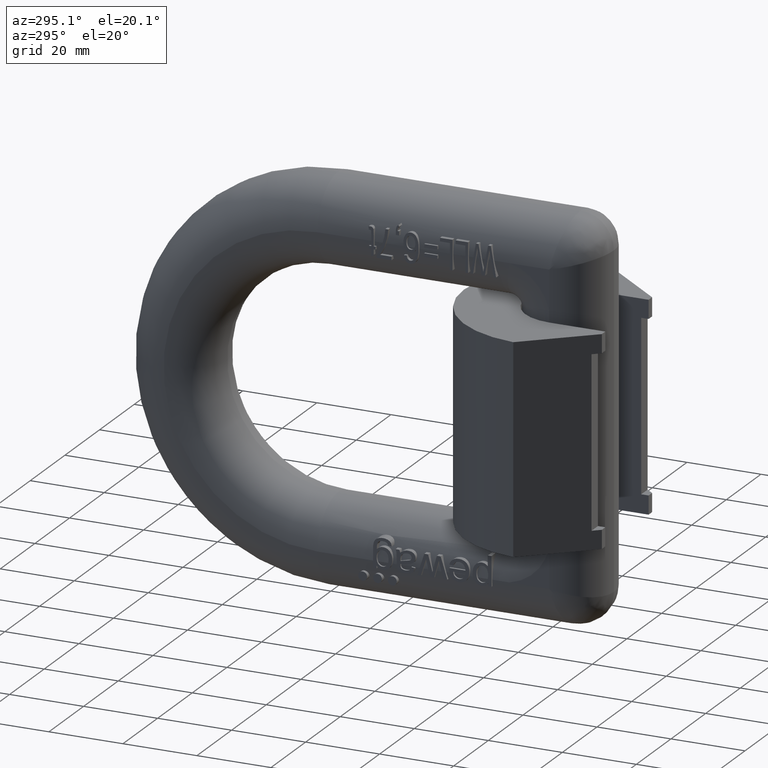
[diagram: clean part render]
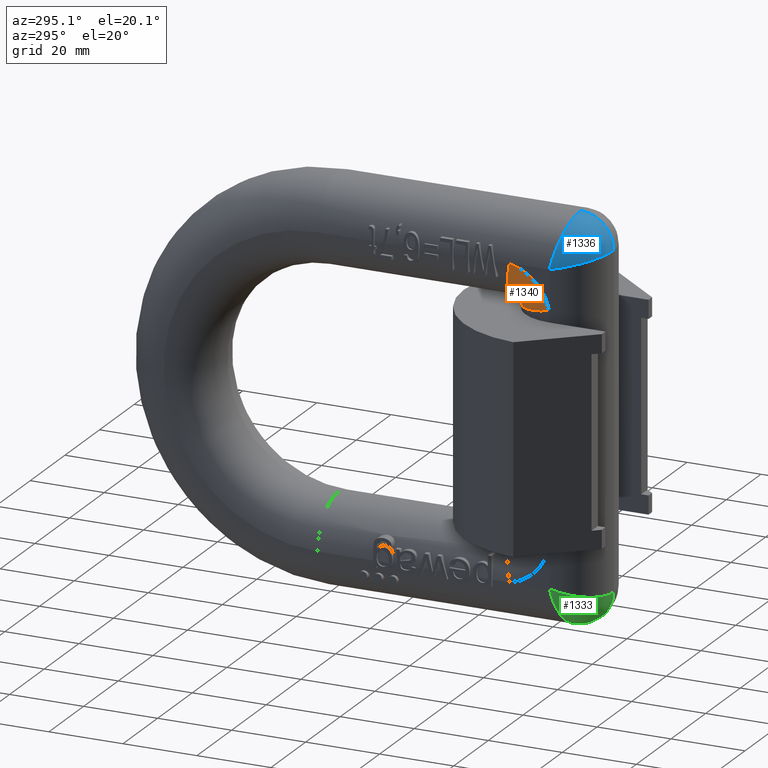
[diagram: same view with three faces highlighted in distinct colors, each labeled with its STEP entity id]
A machine part, auxiliary view with three faces highlighted in distinct colors.
Their STEP definitions:

[orange] entity #1340 — the highlighted toroidal blend (fillet) surface has major radius 13.9 mm and minor (blend) radius 11.9 mm.
#189=TOROIDAL_SURFACE('',#8814,13.9,11.9);
#1340=ADVANCED_FACE('',(#1855),#189,.T.);
#1855=FACE_OUTER_BOUND('',#2302,.T.);
#2302=EDGE_LOOP('',(#3263,#3264,#3265,#3266));
#2749=CIRCLE('',#8719,1.99999999999999);
#2783=CIRCLE('',#8803,13.9);
#2785=CIRCLE('',#8811,11.9);
#2787=CIRCLE('',#8813,11.9);
#3263=ORIENTED_EDGE('',*,*,#6509,.T.);
#3264=ORIENTED_EDGE('',*,*,#6286,.F.);
#3265=ORIENTED_EDGE('',*,*,#6511,.F.);
#3266=ORIENTED_EDGE('',*,*,#6501,.F.);
#5426=VERTEX_POINT('',#10986);
#5427=VERTEX_POINT('',#10988);
#5494=VERTEX_POINT('',#11277);
#5616=VERTEX_POINT('',#12336);
#6286=EDGE_CURVE('',#5426,#5427,#2749,.T.);
#6501=EDGE_CURVE('',#5494,#5616,#2783,.T.);
#6509=EDGE_CURVE('',#5494,#5427,#2785,.T.);
#6511=EDGE_CURVE('',#5616,#5426,#2787,.T.);
#8719=AXIS2_PLACEMENT_3D('',#10987,#9301,#9302);
#8803=AXIS2_PLACEMENT_3D('',#12335,#9528,#9529);
#8811=AXIS2_PLACEMENT_3D('',#12434,#9548,#9549);
#8813=AXIS2_PLACEMENT_3D('',#12460,#9552,#9553);
#8814=AXIS2_PLACEMENT_3D('',#12461,#9554,#9555);
#9301=DIRECTION('',(-1.,0.,0.));
#9302=DIRECTION('',(0.,0.,1.));
#9528=DIRECTION('',(1.,0.,0.));
#9529=DIRECTION('',(0.,0.,1.));
#9548=DIRECTION('',(4.52841825795001E-17,-0.97841726618705,-0.206638944120076));
#9549=DIRECTION('',(0.,-0.206638944120076,0.97841726618705));
#9552=DIRECTION('',(0.,-0.206638944120073,-0.97841726618705));
#9553=DIRECTION('',(0.,0.97841726618705,-0.206638944120073));
#9554=DIRECTION('',(-1.,0.,0.));
#9555=DIRECTION('',(0.,0.,1.));
#10986=CARTESIAN_POINT('',(-0.0999999999999994,27.0431654676259,28.4132778882401));
#10987=CARTESIAN_POINT('',(-0.0999999999999994,29.,28.));
#10988=CARTESIAN_POINT('',(-0.0999999999999994,28.5867221117598,29.9568345323741));
#11277=CARTESIAN_POINT('',(-12.,26.1277186767309,41.6));
#12335=CARTESIAN_POINT('',(-12.,29.,28.));
#12336=CARTESIAN_POINT('',(-12.,15.4,30.872281323269));
#12434=CARTESIAN_POINT('',(-0.1,26.1277186767309,41.6));
#12460=CARTESIAN_POINT('',(-0.0999999999999994,15.4,30.872281323269));
#12461=CARTESIAN_POINT('',(-0.0999999999999994,29.,28.));

[blue] entity #1336 — the highlighted face is a freeform B-spline surface patch.
#196=(
BOUNDED_SURFACE()
B_SPLINE_SURFACE(3,2,((#12391,#12392,#12393),(#12394,#12395,#12396),(#12397,
#12398,#12399),(#12400,#12401,#12402),(#12403,#12404,#12405),(#12406,#12407,
#12408),(#12409,#12410,#12411),(#12412,#12413,#12414),(#12415,#12416,#12417),
(#12418,#12419,#12420),(#12421,#12422,#12423),(#12424,#12425,#12426),(#12427,
#12428,#12429),(#12430,#12431,#12432)),.UNSPECIFIED.,.F.,.F.,.F.)
B_SPLINE_SURFACE_WITH_KNOTS((4,2,2,2,2,2,4),(3,3),(0.,0.125,0.25,0.375,
0.5,0.75,1.),(0.,1.),.UNSPECIFIED.)
GEOMETRIC_REPRESENTATION_ITEM()
RATIONAL_B_SPLINE_SURFACE(((1.,0.707106781186548,1.),(1.,0.707071727587089,
1.),(1.,0.711746003581359,1.),(1.,0.729128892961958,1.),(1.,0.741833419305167,
1.),(1.,0.772396820392037,1.),(1.,0.790218009883101,1.),(1.,0.82759426836024,
1.),(1.,0.847131661322242,1.),(1.,0.90381288870883,1.),(1.,0.938655651599263,
1.),(1.,0.98672918816305,1.),(1.,1.00015858158966,1.),(1.,1.,1.)))
REPRESENTATION_ITEM('')
SURFACE()
);
#270=ELLIPSE('',#8751,12.2482651832821,11.9);
#295=ELLIPSE('',#8808,12.2482651832821,11.9);
#1336=ADVANCED_FACE('',(#1851),#196,.T.);
#1851=FACE_OUTER_BOUND('',#2298,.T.);
#2298=EDGE_LOOP('',(#3248,#3249,#3250));
#2743=CIRCLE('',#8708,9.);
#3248=ORIENTED_EDGE('',*,*,#6270,.F.);
#3249=ORIENTED_EDGE('',*,*,#6360,.T.);
#3250=ORIENTED_EDGE('',*,*,#6505,.T.);
#5415=VERTEX_POINT('',#10935);
#5417=VERTEX_POINT('',#10941);
#5495=VERTEX_POINT('',#11279);
#6270=EDGE_CURVE('',#5417,#5415,#2743,.T.);
#6360=EDGE_CURVE('',#5417,#5495,#270,.T.);
#6505=EDGE_CURVE('',#5495,#5415,#295,.T.);
#8708=AXIS2_PLACEMENT_3D('',#10942,#9272,#9273);
#8751=AXIS2_PLACEMENT_3D('',#11280,#9392,#9393);
#8808=AXIS2_PLACEMENT_3D('',#12384,#9539,#9540);
#9272=DIRECTION('',(1.,0.,0.));
#9273=DIRECTION('',(0.,0.,-1.));
#9392=DIRECTION('',(0.,-0.971566162385393,-0.236768224446861));
#9393=DIRECTION('',(0.,-0.236768224446861,0.971566162385394));
#9539=DIRECTION('',(0.,0.236768224446861,0.971566162385393));
#9540=DIRECTION('',(0.,-0.971566162385394,0.236768224446861));
#10935=CARTESIAN_POINT('',(-0.0999999999999994,3.5,44.5));
#10941=CARTESIAN_POINT('',(-0.0999999999999994,12.5,53.5));
#10942=CARTESIAN_POINT('',(-0.0999999999999994,12.5,44.5));
#11279=CARTESIAN_POINT('',(-12.,15.4,41.6));
#11280=CARTESIAN_POINT('',(-0.0999999999999994,15.4,41.6));
#12384=CARTESIAN_POINT('',(-0.0999999999999994,15.4,41.6));
#12391=CARTESIAN_POINT('',(-0.0999999999999994,12.5,53.5));
#12392=CARTESIAN_POINT('',(-0.0999999999999994,3.5,53.5));
#12393=CARTESIAN_POINT('',(-0.0999999999999994,3.5,44.5));
#12394=CARTESIAN_POINT('',(-0.87886200290205,12.500000000002,53.5));
#12395=CARTESIAN_POINT('',(-1.47012776871674,3.50000000027555,53.4999999997262));
#12396=CARTESIAN_POINT('',(-0.878862002901966,3.5,44.499999999998));
#12397=CARTESIAN_POINT('',(-1.65768711330857,12.5186936555572,53.423291551334));
#12398=CARTESIAN_POINT('',(-2.8161353901327,3.69508208408039,53.3049179159206));
#12399=CARTESIAN_POINT('',(-1.65768711330868,3.57670844866603,44.4813063444429));
#12400=CARTESIAN_POINT('',(-3.18546255067528,12.5927517181041,53.1193981222629));
#12401=CARTESIAN_POINT('',(-5.251750648587,4.40099670230553,52.5990032976935));
#12402=CARTESIAN_POINT('',(-3.18546255067516,3.88060187773709,44.4072482818957));
#12403=CARTESIAN_POINT('',(-3.93436634694925,12.648114297945,52.8922206394661));
#12404=CARTESIAN_POINT('',(-6.31780790449277,4.89435861280929,52.1056413871901));
#12405=CARTESIAN_POINT('',(-3.93436634694842,4.10777936053354,44.3518857020544));
#12406=CARTESIAN_POINT('',(-5.37349934333985,12.7933844134895,52.2961122343025));
#12407=CARTESIAN_POINT('',(-8.08291487624277,6.01889838755637,50.9811016124442));
#12408=CARTESIAN_POINT('',(-5.37349934334068,4.70388776569783,44.206615586511));
#12409=CARTESIAN_POINT('',(-6.06369303220414,12.8832883644285,51.9271960218271));
#12410=CARTESIAN_POINT('',(-8.78644080562444,6.63610061473323,50.3638993852663));
#12411=CARTESIAN_POINT('',(-6.06369303220358,5.07280397817253,44.1167116355711));
#12412=CARTESIAN_POINT('',(-7.35887851366238,13.0941878842167,51.0617807509735));
#12413=CARTESIAN_POINT('',(-9.89352186675668,7.87623810999018,49.1237618900103));
#12414=CARTESIAN_POINT('',(-7.35887851366295,5.9382192490269,43.9058121157836));
#12415=CARTESIAN_POINT('',(-7.9638383391856,13.2151782475753,50.5653030530542));
#12416=CARTESIAN_POINT('',(-10.30943666763,8.49642197528189,48.5035780247175));
#12417=CARTESIAN_POINT('',(-7.96383833918676,6.43469694694694,43.7848217524253));
#12418=CARTESIAN_POINT('',(-9.61603540998847,13.6178145085264,48.9131059822513));
#12419=CARTESIAN_POINT('',(-11.2478536217473,10.2508534798261,46.749146520175));
#12420=CARTESIAN_POINT('',(-9.61603540998616,8.08689401774633,43.3821854914723));
#12421=CARTESIAN_POINT('',(-10.4980580277896,13.9395049606744,47.5930658510257));
#12422=CARTESIAN_POINT('',(-11.5627073128319,11.3749807080527,45.6250192919514));
#12423=CARTESIAN_POINT('',(-10.4980580277897,9.40693414897449,43.0604950393255));
#12424=CARTESIAN_POINT('',(-11.690274845979,14.640931131608,44.7147998392635));
#12425=CARTESIAN_POINT('',(-11.9303455409395,13.4376848805871,43.5623151194089));
#12426=CARTESIAN_POINT('',(-11.690274845979,12.2852001607364,42.359068868392));
#12427=CARTESIAN_POINT('',(-12.,15.0203224480194,43.1579871960626));
#12428=CARTESIAN_POINT('',(-11.999712976718,14.43147272481,42.5685272751881));
#12429=CARTESIAN_POINT('',(-12.,13.8420128039381,41.9796775519831));
#12430=CARTESIAN_POINT('',(-12.,15.4,41.5999999999999));
#12431=CARTESIAN_POINT('',(-12.,15.4,41.6));
#12432=CARTESIAN_POINT('',(-12.,15.4,41.6));

[green] entity #1333 — the highlighted face is a freeform B-spline surface patch.
#195=(
BOUNDED_SURFACE()
B_SPLINE_SURFACE(3,2,((#12340,#12341,#12342),(#12343,#12344,#12345),(#12346,
#12347,#12348),(#12349,#12350,#12351),(#12352,#12353,#12354),(#12355,#12356,
#12357),(#12358,#12359,#12360),(#12361,#12362,#12363),(#12364,#12365,#12366),
(#12367,#12368,#12369),(#12370,#12371,#12372),(#12373,#12374,#12375),(#12376,
#12377,#12378),(#12379,#12380,#12381)),.UNSPECIFIED.,.F.,.F.,.F.)
B_SPLINE_SURFACE_WITH_KNOTS((4,2,2,2,2,2,4),(3,3),(0.,0.125,0.25,0.375,
0.5,0.75,1.),(0.,1.),.UNSPECIFIED.)
GEOMETRIC_REPRESENTATION_ITEM()
RATIONAL_B_SPLINE_SURFACE(((1.,0.707106781186548,1.),(1.,0.707071727587089,
1.),(1.,0.711746003581358,1.),(1.,0.729128892961958,1.),(1.,0.741833419305155,
1.),(1.,0.772396820392048,1.),(1.,0.790218009883089,1.),(1.,0.827594268360252,
1.),(1.,0.847131661322254,1.),(1.,0.903812888708804,1.),(1.,0.938655651599234,
1.),(1.,0.986729188163078,1.),(1.,1.00015858158963,1.),(1.,1.,1.)))
REPRESENTATION_ITEM('')
SURFACE()
);
#280=ELLIPSE('',#8777,12.2482651832821,11.9);
#294=ELLIPSE('',#8805,12.2482651832821,11.9);
#1333=ADVANCED_FACE('',(#1848),#195,.T.);
#1848=FACE_OUTER_BOUND('',#2295,.T.);
#2295=EDGE_LOOP('',(#3233,#3234,#3235));
#2747=CIRCLE('',#8716,8.99999999999999);
#3233=ORIENTED_EDGE('',*,*,#6436,.T.);
#3234=ORIENTED_EDGE('',*,*,#6281,.F.);
#3235=ORIENTED_EDGE('',*,*,#6503,.F.);
#5412=VERTEX_POINT('',#10930);
#5423=VERTEX_POINT('',#10959);
#5564=VERTEX_POINT('',#11750);
#6281=EDGE_CURVE('',#5412,#5423,#2747,.T.);
#6436=EDGE_CURVE('',#5564,#5423,#280,.T.);
#6503=EDGE_CURVE('',#5564,#5412,#294,.T.);
#8716=AXIS2_PLACEMENT_3D('',#10963,#9295,#9296);
#8777=AXIS2_PLACEMENT_3D('',#11749,#9465,#9466);
#8805=AXIS2_PLACEMENT_3D('',#12339,#9533,#9534);
#9295=DIRECTION('',(1.,0.,0.));
#9296=DIRECTION('',(0.,0.,-1.));
#9465=DIRECTION('',(0.,-0.971566162385394,0.236768224446861));
#9466=DIRECTION('',(0.,-0.236768224446861,-0.971566162385394));
#9533=DIRECTION('',(0.,-0.236768224446859,0.971566162385394));
#9534=DIRECTION('',(0.,-0.971566162385394,-0.23676822444686));
#10930=CARTESIAN_POINT('',(-0.0999999999999994,3.5,-44.5));
#10959=CARTESIAN_POINT('',(-0.0999999999999994,12.5,-53.5));
#10963=CARTESIAN_POINT('',(-0.0999999999999994,12.5,-44.5));
#11749=CARTESIAN_POINT('',(-0.0999999999999994,15.4,-41.6));
#11750=CARTESIAN_POINT('',(-12.,15.4,-41.6));
#12339=CARTESIAN_POINT('',(-0.0999999999999994,15.4,-41.6));
#12340=CARTESIAN_POINT('',(-0.0999999999999994,3.5,-44.5));
#12341=CARTESIAN_POINT('',(-0.0999999999999994,3.5,-53.5));
#12342=CARTESIAN_POINT('',(-0.0999999999999994,12.5,-53.5));
#12343=CARTESIAN_POINT('',(-0.87886200290199,3.5,-44.499999999998));
#12344=CARTESIAN_POINT('',(-1.47012776871681,3.50000000027357,-53.4999999997263));
#12345=CARTESIAN_POINT('',(-0.878862002902052,12.500000000002,-53.5));
#12346=CARTESIAN_POINT('',(-1.65768711330864,3.57670844866602,-44.481306344443));
#12347=CARTESIAN_POINT('',(-2.81613539013262,3.69508208408022,-53.3049179159193));
#12348=CARTESIAN_POINT('',(-1.65768711330856,12.5186936555572,-53.423291551334));
#12349=CARTESIAN_POINT('',(-3.18546255067519,3.8806018777371,-44.4072482818958));
#12350=CARTESIAN_POINT('',(-5.25175064858708,4.40099670230569,-52.5990032976948));
#12351=CARTESIAN_POINT('',(-3.18546255067527,12.5927517181041,-53.1193981222629));
#12352=CARTESIAN_POINT('',(-3.93436634694855,4.10777936053359,-44.3518857020545));
#12353=CARTESIAN_POINT('',(-6.31780790449275,4.89435861281,-52.1056413871894));
#12354=CARTESIAN_POINT('',(-3.93436634694918,12.6481142979452,-52.8922206394662));
#12355=CARTESIAN_POINT('',(-5.37349934334055,4.70388776569778,-44.206615586511));
#12356=CARTESIAN_POINT('',(-8.08291487624276,6.01889838755567,-50.9811016124449));
#12357=CARTESIAN_POINT('',(-5.37349934333993,12.7933844134893,-52.2961122343025));
#12358=CARTESIAN_POINT('',(-6.06369303220393,5.07280397817276,-44.1167116355719));
#12359=CARTESIAN_POINT('',(-8.78644080562405,6.6361006147339,-50.3638993852678));
#12360=CARTESIAN_POINT('',(-6.06369303220273,12.8832883644287,-51.927196021828));
#12361=CARTESIAN_POINT('',(-7.3588785136626,5.93821924902667,-43.9058121157829));
#12362=CARTESIAN_POINT('',(-9.89352186675704,7.87623810998952,-49.1237618900088));
#12363=CARTESIAN_POINT('',(-7.3588785136638,13.0941878842165,-51.0617807509725));
#12364=CARTESIAN_POINT('',(-7.96383833918676,6.43469694694693,-43.7848217524253));
#12365=CARTESIAN_POINT('',(-10.3094366676294,8.49642197528312,-48.50357802472));
#12366=CARTESIAN_POINT('',(-7.96383833918559,13.2151782475753,-50.5653030530542));
#12367=CARTESIAN_POINT('',(-9.61603540998616,8.08689401774632,-43.3821854914724));
#12368=CARTESIAN_POINT('',(-11.2478536217485,10.2508534798238,-46.7491465201704));
#12369=CARTESIAN_POINT('',(-9.61603540998847,13.6178145085264,-48.9131059822514));
#12370=CARTESIAN_POINT('',(-10.4980580277889,9.40693414897264,-43.0604950393256));
#12371=CARTESIAN_POINT('',(-11.5627073128309,11.3749807080486,-45.6250192919478));
#12372=CARTESIAN_POINT('',(-10.4980580277895,13.939504960674,-47.5930658510258));
#12373=CARTESIAN_POINT('',(-11.6902748459797,12.2852001607382,-42.359068868392));
#12374=CARTESIAN_POINT('',(-11.9303455409403,13.437684880591,-43.5623151194125));
#12375=CARTESIAN_POINT('',(-11.6902748459791,14.6409311316085,-44.7147998392633));
#12376=CARTESIAN_POINT('',(-12.,13.8420128039368,-41.9796775519835));
#12377=CARTESIAN_POINT('',(-11.9997129767156,14.4314727248107,-42.5685272751893));
#12378=CARTESIAN_POINT('',(-12.,15.0203224480198,-43.1579871960629));
#12379=CARTESIAN_POINT('',(-12.,15.4,-41.6));
#12380=CARTESIAN_POINT('',(-12.,15.4,-41.6));
#12381=CARTESIAN_POINT('',(-12.,15.4,-41.6));